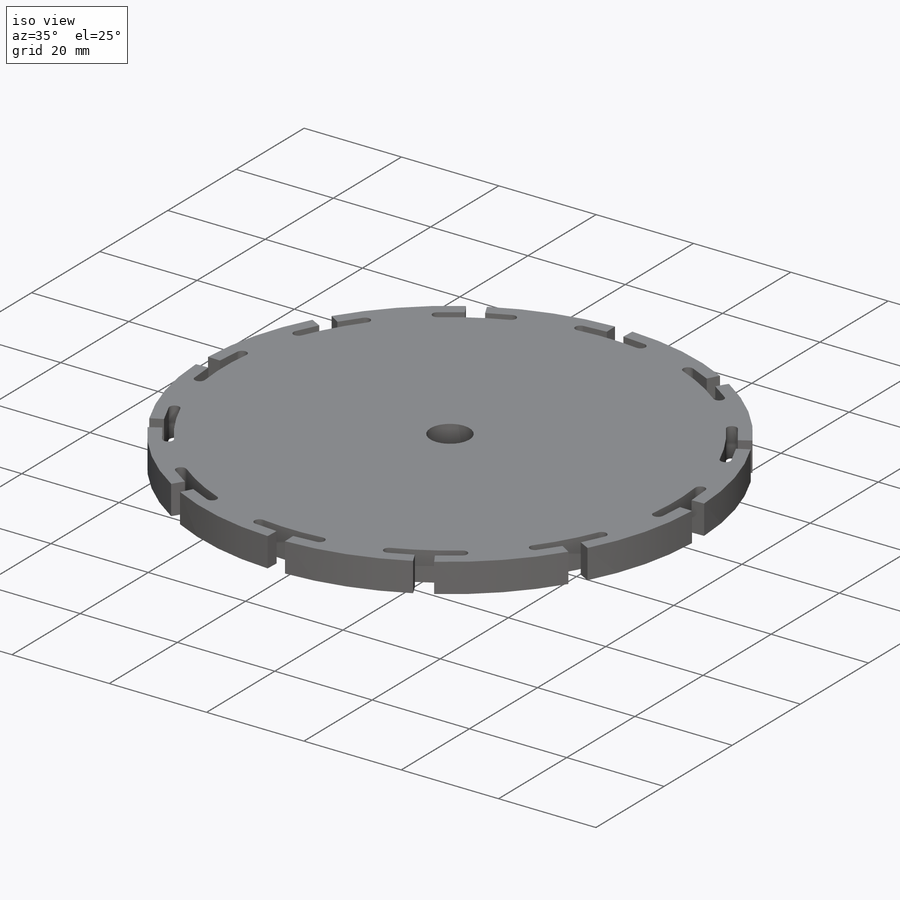
[diagram: iso view]
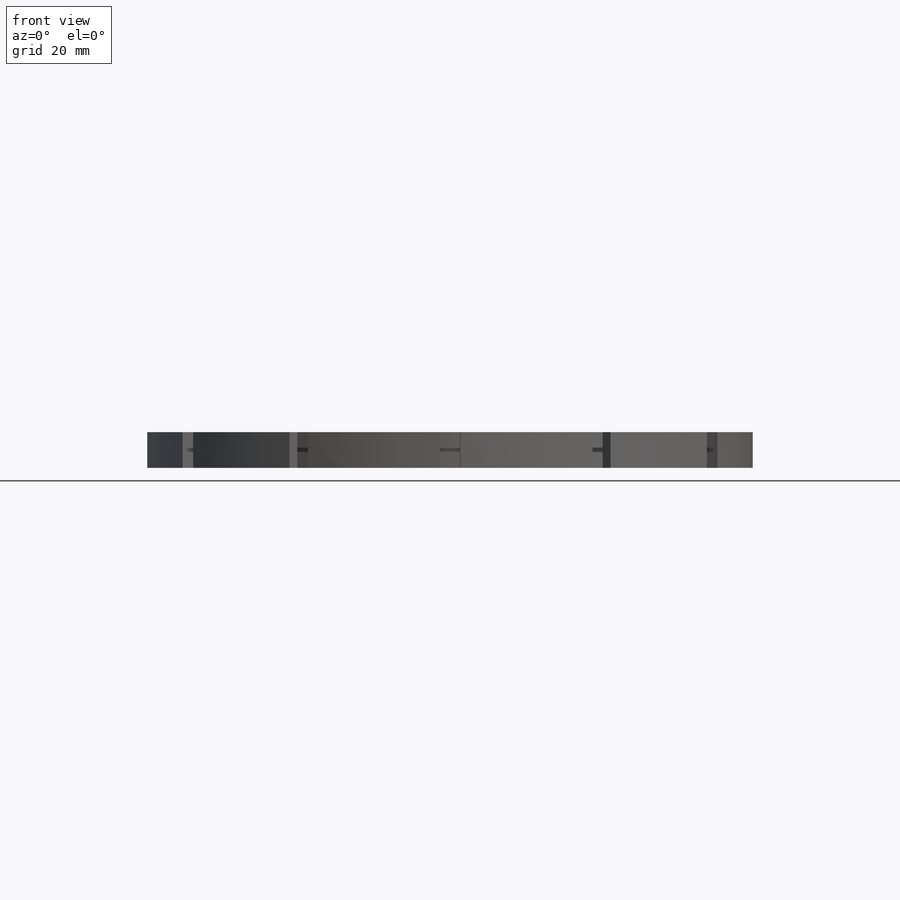
[diagram: front view]
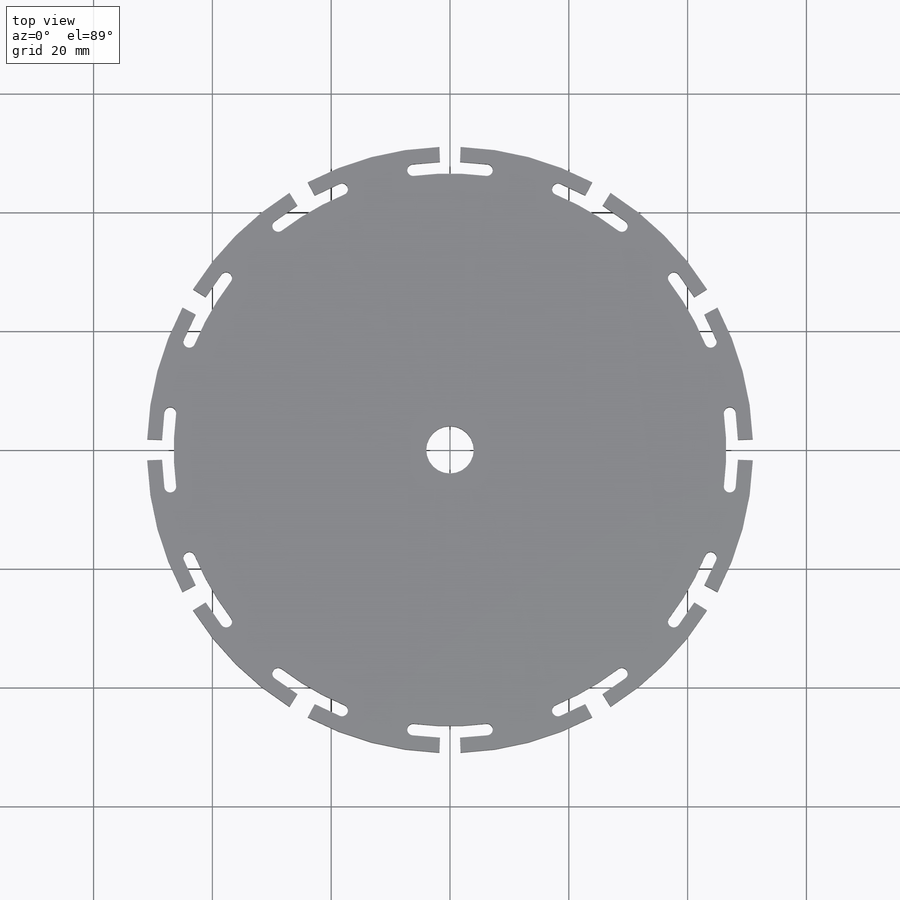
[diagram: top view]
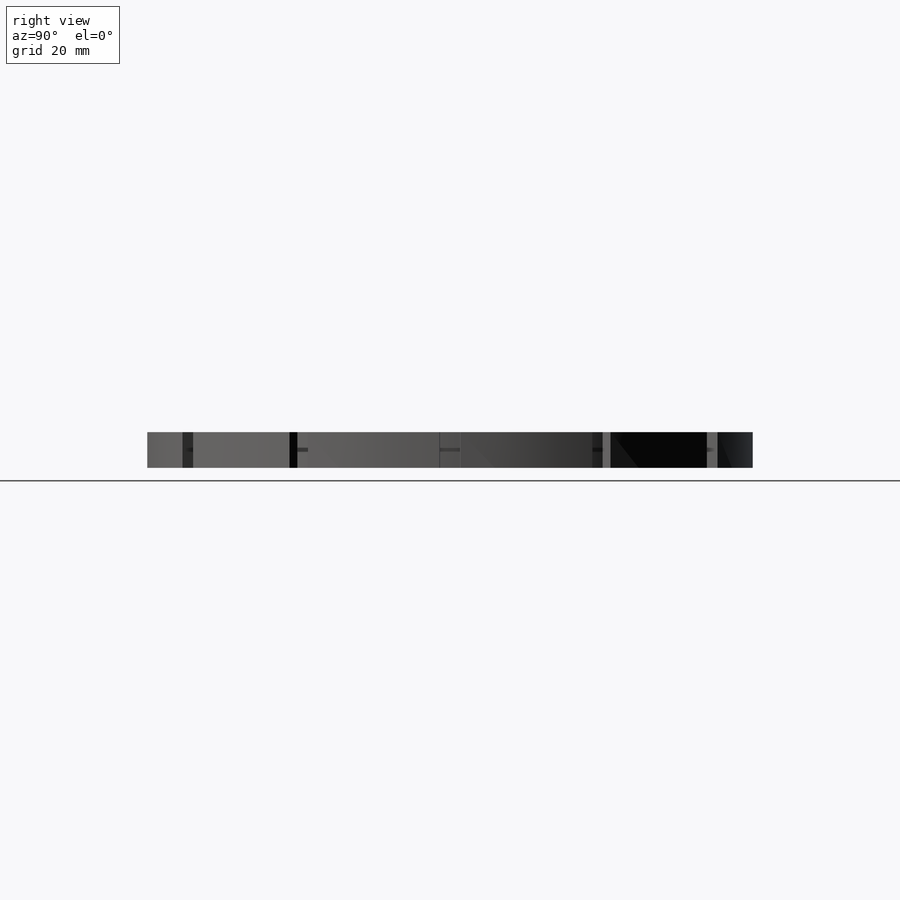
[diagram: right view]
SOLIDWORKS PART (.sldprt)
format: sldprt  version: not decoded by parser v0  size: 256,512 bytes
history: native  units: mm
features: sketch x3, cut_extrude x2, material x1, extrude x1 (+11 scaffold rows collapsed)
feature tree (18):
  scaffold x11  (default folders/planes/origin — collapsed)
  material  "Material <not specified>"
  sketch  "Sketch1"  dims[D1=102.0mm]
  sketch  "Sketch2"  dims[c1.D1=~44.49803mm c1.D5=100.0mm c1.D2=~41.196334mm c1.D4=~43.196334mm c2.D1=2.0mm c2.D2=3.0mm c2.D3=~39.334294mm c3.D3=15.0deg c3.D4=50.0mm c4.D4=~36.158185deg c4.D2=50.0mm c5.D2=3.0deg c5.D5=2.0mm c5.D4=50.0mm c6.D4=6.0deg c6.D6=4.0mm c6.D1=~48.027214mm c7.D1=15.0deg c7.D2=2.0mm c7.D3=2.0mm c8.D2=2.0mm c8.D3=~6.787124mm c9.D3=4.0deg c9.D4=2.5mm c9.D5=12.0]
  sketch  "Sketch3"  dims[D1=8.0mm]
  extrude  "Boss-Extrude1"  Depth=6mm
  cut_extrude  "Cut-Extrude1"  [1 undecoded]
  cut_extrude  "Cut-Extrude2"  Depth=6mm
decode coverage: 5 of 6 modeling features carry decoded parameters
note: ~ marks probable driven/reference dimensions
note: 1 parameter value undecoded
note: suppression state not decoded; provenance and decode notes live in map.json
